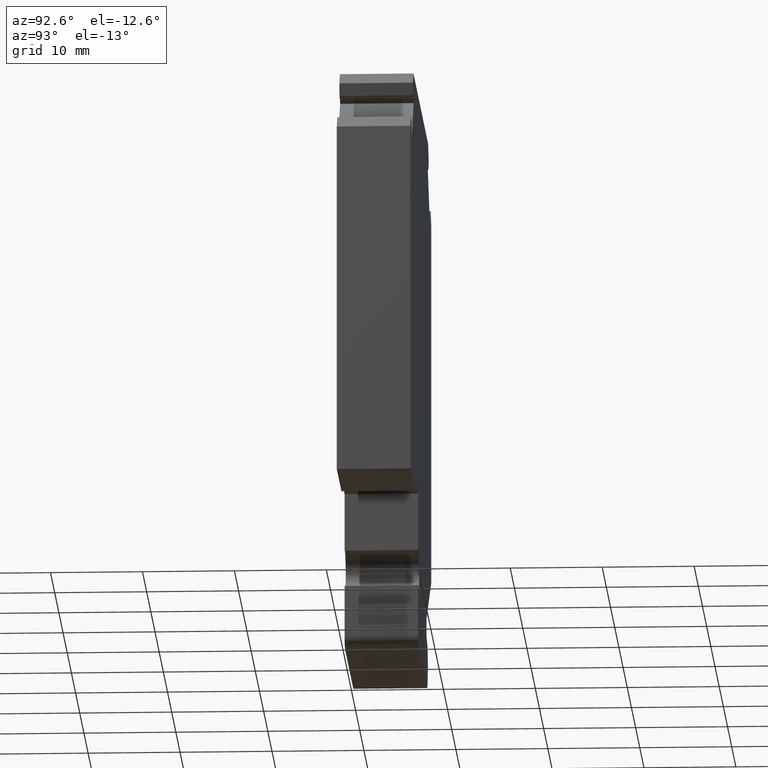
[diagram: clean part render]
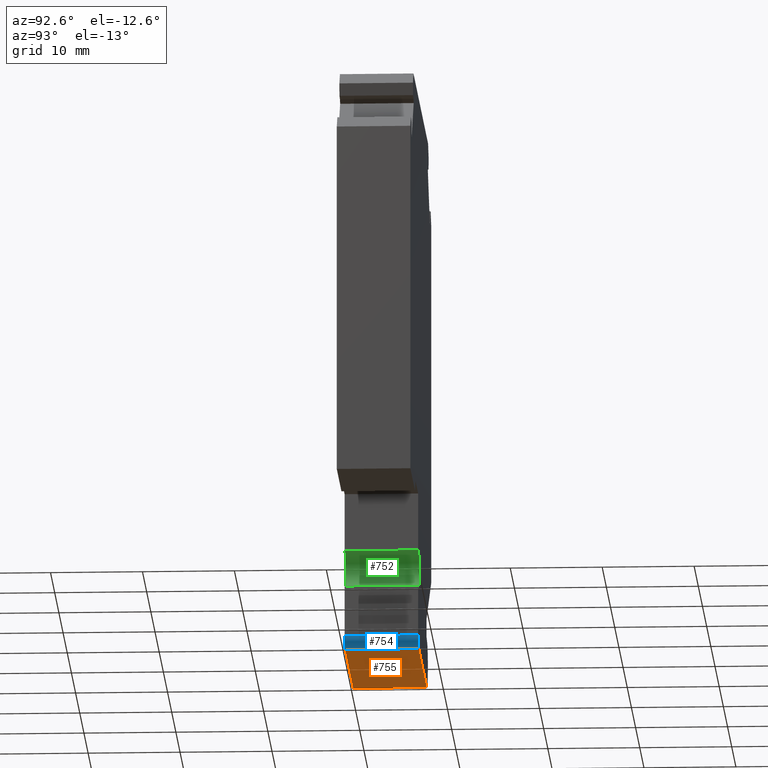
[diagram: same view with three faces highlighted in distinct colors, each labeled with its STEP entity id]
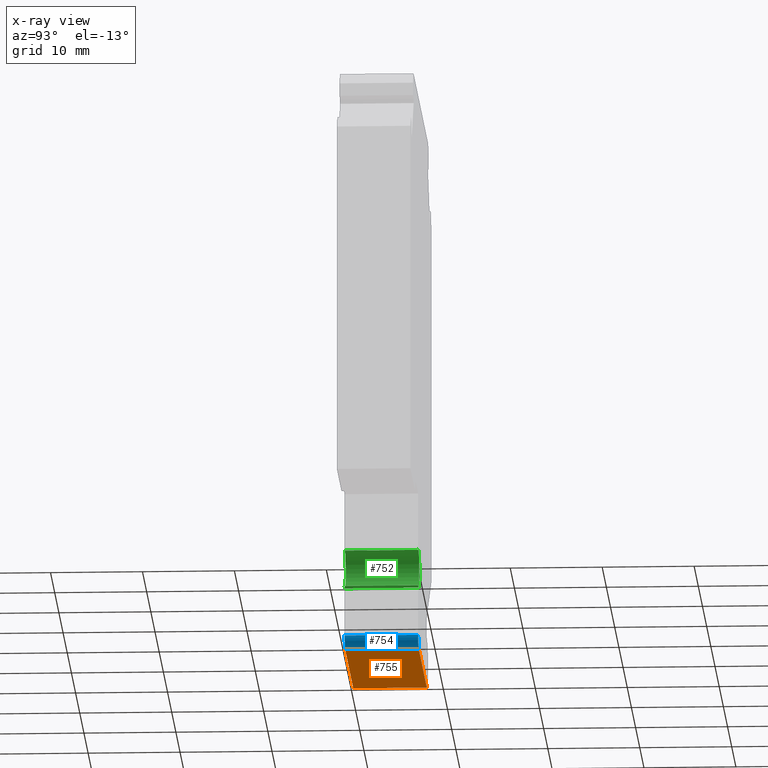
[diagram: x-ray of the same camera — body ghosted, the three highlighted faces saturated]
A machine part, auxiliary view with three faces highlighted in distinct colors.
The next image is the same camera in x-ray (body ghosted, the three faces saturated) — at least one of them is partly hidden behind the body in this view.
Their STEP definitions:

[orange] entity #755 — the highlighted planar face has unit normal (0, 0, 1).
#111=ORIENTED_EDGE('',*,*,#309,.T.);
#112=ORIENTED_EDGE('',*,*,#310,.F.);
#113=ORIENTED_EDGE('',*,*,#311,.F.);
#114=ORIENTED_EDGE('',*,*,#307,.T.);
#307=EDGE_CURVE('',#398,#397,#484,.T.);
#309=EDGE_CURVE('',#397,#399,#485,.T.);
#310=EDGE_CURVE('',#400,#399,#486,.T.);
#311=EDGE_CURVE('',#398,#400,#487,.T.);
#397=VERTEX_POINT('',#1145);
#398=VERTEX_POINT('',#1147);
#399=VERTEX_POINT('',#1151);
#400=VERTEX_POINT('',#1153);
#484=LINE('',#1146,#582);
#485=LINE('',#1150,#583);
#486=LINE('',#1152,#584);
#487=LINE('',#1154,#585);
#582=VECTOR('',#934,1000.);
#583=VECTOR('',#939,1000.);
#584=VECTOR('',#940,1000.);
#585=VECTOR('',#941,1000.);
#646=EDGE_LOOP('',(#111,#112,#113,#114));
#684=FACE_BOUND('',#646,.T.);
#720=PLANE('',#810);
#755=ADVANCED_FACE('',(#684),#720,.F.);
#810=AXIS2_PLACEMENT_3D('',#1149,#937,#938);
#934=DIRECTION('',(0.,-1.,0.));
#937=DIRECTION('',(0.,0.,1.));
#938=DIRECTION('',(1.,0.,0.));
#939=DIRECTION('',(-1.,0.,0.));
#940=DIRECTION('',(0.,-1.,0.));
#941=DIRECTION('',(-1.,0.,0.));
#1145=CARTESIAN_POINT('',(4.99999999999989,0.,-31.6276989731613));
#1146=CARTESIAN_POINT('',(4.99999999999989,8.,-31.6276989731613));
#1147=CARTESIAN_POINT('',(4.99999999999989,8.,-31.6276989731613));
#1149=CARTESIAN_POINT('',(4.99999999999989,8.,-31.6276989731612));
#1150=CARTESIAN_POINT('',(4.99999999999989,0.,-31.6276989731612));
#1151=CARTESIAN_POINT('',(-14.375,0.,-31.6276989731612));
#1152=CARTESIAN_POINT('',(-14.375,8.,-31.6276989731612));
#1153=CARTESIAN_POINT('',(-14.375,8.,-31.6276989731612));
#1154=CARTESIAN_POINT('',(4.99999999999989,8.,-31.6276989731612));

[blue] entity #754 — the highlighted cylindrical surface (edge-blend (fillet) strip) has radius 1.25 mm, axis along (0, -1, 0).
#22=CIRCLE('',#808,1.25000000000003);
#23=CIRCLE('',#809,1.25000000000003);
#31=CYLINDRICAL_SURFACE('',#807,1.25000000000003);
#107=ORIENTED_EDGE('',*,*,#306,.T.);
#108=ORIENTED_EDGE('',*,*,#307,.F.);
#109=ORIENTED_EDGE('',*,*,#308,.F.);
#110=ORIENTED_EDGE('',*,*,#304,.T.);
#304=EDGE_CURVE('',#396,#395,#482,.T.);
#306=EDGE_CURVE('',#395,#397,#22,.T.);
#307=EDGE_CURVE('',#398,#397,#484,.T.);
#308=EDGE_CURVE('',#396,#398,#23,.T.);
#395=VERTEX_POINT('',#1139);
#396=VERTEX_POINT('',#1141);
#397=VERTEX_POINT('',#1145);
#398=VERTEX_POINT('',#1147);
#482=LINE('',#1140,#580);
#484=LINE('',#1146,#582);
#580=VECTOR('',#928,1000.);
#582=VECTOR('',#934,1000.);
#645=EDGE_LOOP('',(#107,#108,#109,#110));
#683=FACE_BOUND('',#645,.T.);
#754=ADVANCED_FACE('',(#683),#31,.T.);
#807=AXIS2_PLACEMENT_3D('',#1143,#930,#931);
#808=AXIS2_PLACEMENT_3D('',#1144,#932,#933);
#809=AXIS2_PLACEMENT_3D('',#1148,#935,#936);
#928=DIRECTION('',(0.,-1.,0.));
#930=DIRECTION('',(0.,-1.,0.));
#931=DIRECTION('',(0.,0.,-1.));
#932=DIRECTION('',(0.,1.,0.));
#933=DIRECTION('',(-1.,0.,0.));
#934=DIRECTION('',(0.,-1.,0.));
#935=DIRECTION('',(0.,1.,0.));
#936=DIRECTION('',(-1.,0.,0.));
#1139=CARTESIAN_POINT('',(6.25000000000009,0.,-30.3776989731612));
#1140=CARTESIAN_POINT('',(6.25000000000009,8.,-30.3776989731612));
#1141=CARTESIAN_POINT('',(6.25000000000009,8.,-30.3776989731612));
#1143=CARTESIAN_POINT('',(4.99999999999989,8.,-30.3776989731612));
#1144=CARTESIAN_POINT('',(4.99999999999989,0.,-30.3776989731612));
#1145=CARTESIAN_POINT('',(4.99999999999989,0.,-31.6276989731613));
#1146=CARTESIAN_POINT('',(4.99999999999989,8.,-31.6276989731613));
#1147=CARTESIAN_POINT('',(4.99999999999989,8.,-31.6276989731613));
#1148=CARTESIAN_POINT('',(4.99999999999989,8.,-30.3776989731612));

[green] entity #752 — the highlighted cylindrical surface (edge-blend (fillet) strip) has radius 2.0625 mm, axis along (0, -1, 0).
#20=CIRCLE('',#804,2.0625);
#21=CIRCLE('',#805,2.0625);
#30=CYLINDRICAL_SURFACE('',#803,2.0625);
#99=ORIENTED_EDGE('',*,*,#300,.T.);
#100=ORIENTED_EDGE('',*,*,#301,.F.);
#101=ORIENTED_EDGE('',*,*,#302,.F.);
#102=ORIENTED_EDGE('',*,*,#298,.T.);
#298=EDGE_CURVE('',#392,#391,#478,.T.);
#300=EDGE_CURVE('',#391,#393,#20,.T.);
#301=EDGE_CURVE('',#394,#393,#480,.T.);
#302=EDGE_CURVE('',#392,#394,#21,.T.);
#391=VERTEX_POINT('',#1127);
#392=VERTEX_POINT('',#1129);
#393=VERTEX_POINT('',#1133);
#394=VERTEX_POINT('',#1135);
#478=LINE('',#1128,#576);
#480=LINE('',#1134,#578);
#576=VECTOR('',#916,1000.);
#578=VECTOR('',#922,1000.);
#643=EDGE_LOOP('',(#99,#100,#101,#102));
#681=FACE_BOUND('',#643,.T.);
#752=ADVANCED_FACE('',(#681),#30,.F.);
#803=AXIS2_PLACEMENT_3D('',#1131,#918,#919);
#804=AXIS2_PLACEMENT_3D('',#1132,#920,#921);
#805=AXIS2_PLACEMENT_3D('',#1136,#923,#924);
#916=DIRECTION('',(0.,-1.,0.));
#918=DIRECTION('',(0.,-1.,0.));
#919=DIRECTION('',(0.,0.,-1.));
#920=DIRECTION('',(0.,-1.,0.));
#921=DIRECTION('',(1.,0.,0.));
#922=DIRECTION('',(0.,-1.,0.));
#923=DIRECTION('',(0.,-1.,0.));
#924=DIRECTION('',(1.,0.,0.));
#1127=CARTESIAN_POINT('',(6.25000000000009,0.,-20.9121758239714));
#1128=CARTESIAN_POINT('',(6.25000000000009,8.,-20.9121758239714));
#1129=CARTESIAN_POINT('',(6.25000000000009,8.,-20.9121758239714));
#1131=CARTESIAN_POINT('',(5.62499999999999,8.,-22.8776989731612));
#1132=CARTESIAN_POINT('',(5.62499999999999,0.,-22.8776989731612));
#1133=CARTESIAN_POINT('',(6.25000000000009,0.,-24.8432221223507));
#1134=CARTESIAN_POINT('',(6.25000000000009,8.,-24.8432221223507));
#1135=CARTESIAN_POINT('',(6.25000000000009,8.,-24.8432221223507));
#1136=CARTESIAN_POINT('',(5.62499999999999,8.,-22.8776989731612));